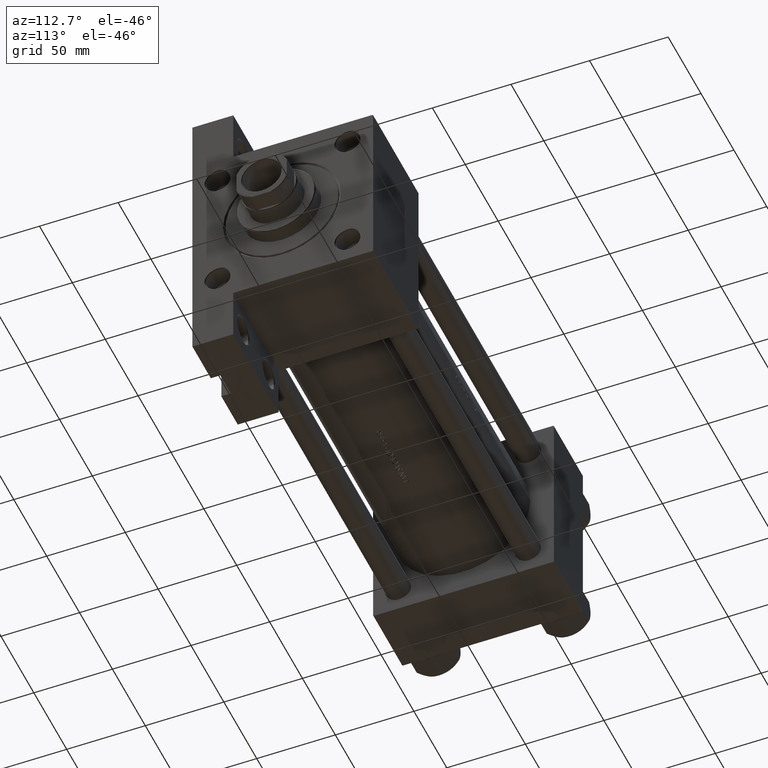
[diagram: clean part render]
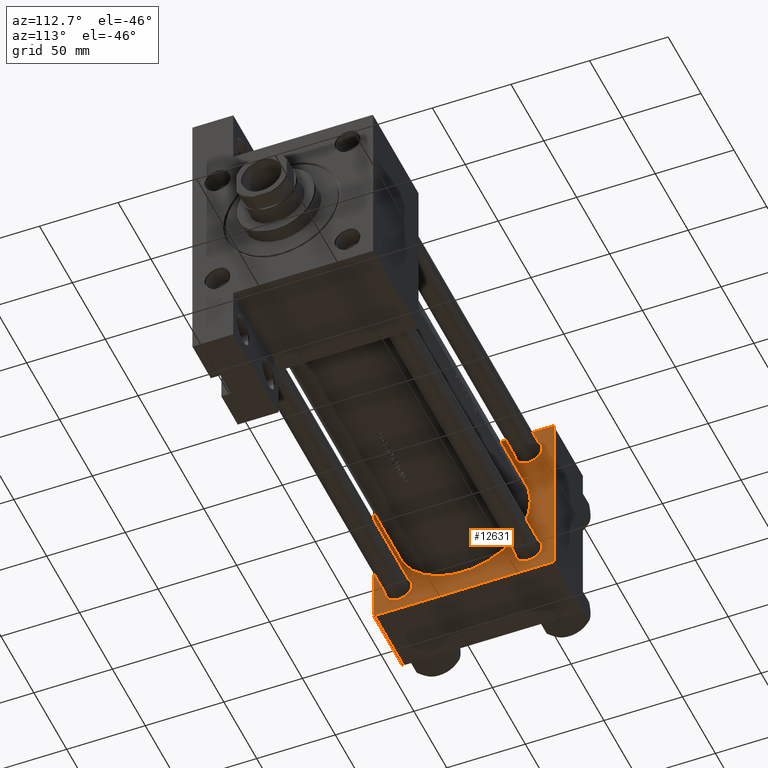
[diagram: same view with one face highlighted and labeled with its STEP entity id]
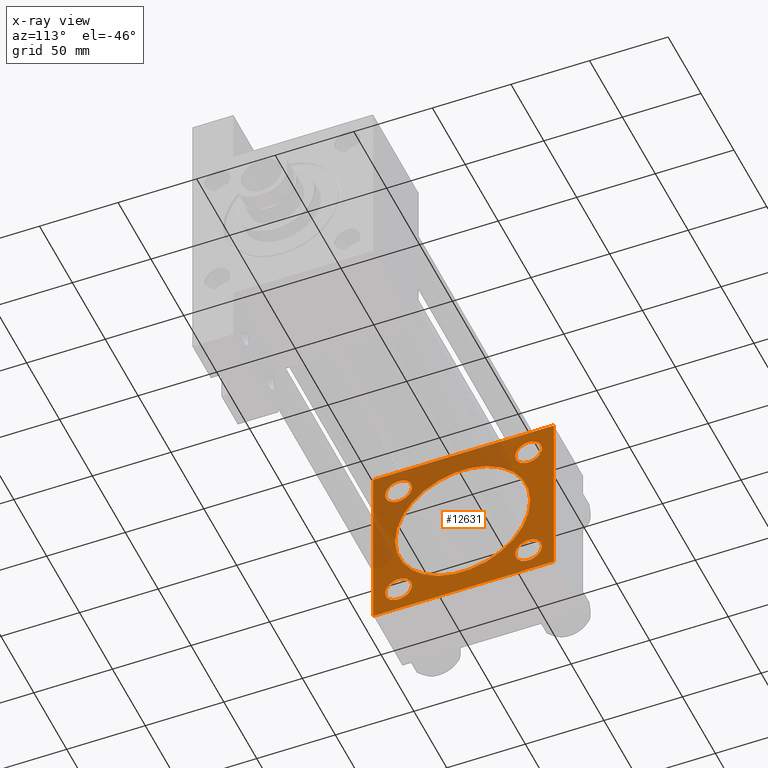
[diagram: x-ray of the same camera — body ghosted, the highlighted face saturated]
A machine part, auxiliary view. The second image highlights one B-rep face of the part: STEP entity #12631.
The next image is the same camera in x-ray: the body ghosted, the highlighted face saturated — about 34% of this face is hidden behind the body in this view.
In plain terms, the highlighted planar face has unit normal (-1, 0, -0).
Its self-contained STEP definition (entity closure, byte-faithful):
#271 = DIRECTION ( 'NONE',  ( 0.000000000000000000, 0.000000000000000000, 1.000000000000000000 ) ) ;
#310 = AXIS2_PLACEMENT_3D ( 'NONE', #36763, #47953, #36996 ) ;
#540 = CARTESIAN_POINT ( 'NONE',  ( 44.00000000000000000, 57.49999999999999289, -57.00000000000000711 ) ) ;
#639 = LINE ( 'NONE', #30316, #41156 ) ;
#788 = CARTESIAN_POINT ( 'NONE',  ( 44.00000000000000000, 41.34999999999999432, 41.35000000000000142 ) ) ;
#869 = VERTEX_POINT ( 'NONE', #37742 ) ;
#907 = VERTEX_POINT ( 'NONE', #22914 ) ;
#1273 = VERTEX_POINT ( 'NONE', #6579 ) ;
#1302 = EDGE_LOOP ( 'NONE', ( #38265, #28093 ) ) ;
#1356 = CARTESIAN_POINT ( 'NONE',  ( 44.00000000000000000, 57.49999999999999289, 57.00000000000003553 ) ) ;
#1461 = LINE ( 'NONE', #5357, #1559 ) ;
#1559 = VECTOR ( 'NONE', #42807, 1000.000000000000000 ) ;
#1704 = DIRECTION ( 'NONE',  ( 0.000000000000000000, -1.000000000000000000, -1.206764157201257045E-16 ) ) ;
#1901 = VERTEX_POINT ( 'NONE', #16872 ) ;
#1915 = EDGE_LOOP ( 'NONE', ( #17253, #29608 ) ) ;
#2277 = LINE ( 'NONE', #12520, #24657 ) ;
#2476 = CARTESIAN_POINT ( 'NONE',  ( 44.00000000000000000, 0.000000000000000000, 0.000000000000000000 ) ) ;
#2921 = ORIENTED_EDGE ( 'NONE', *, *, #4729, .T. ) ;
#2977 = CARTESIAN_POINT ( 'NONE',  ( 44.00000000000000000, 41.34999999999999432, -41.35000000000000142 ) ) ;
#4199 = CARTESIAN_POINT ( 'NONE',  ( 44.00000000000000000, 41.34999999999999432, 49.84999999999993037 ) ) ;
#4268 = ORIENTED_EDGE ( 'NONE', *, *, #21208, .T. ) ;
#4333 = VECTOR ( 'NONE', #36201, 1000.000000000000000 ) ;
#4724 = EDGE_CURVE ( 'NONE', #16147, #8024, #1461, .T. ) ;
#4729 = EDGE_CURVE ( 'NONE', #7351, #7054, #16787, .T. ) ;
#4861 = DIRECTION ( 'NONE',  ( 0.000000000000000000, 0.000000000000000000, 1.000000000000000000 ) ) ;
#5357 = CARTESIAN_POINT ( 'NONE',  ( 44.00000000000000000, 57.49999999999999289, 57.50000000000000711 ) ) ;
#5454 = DIRECTION ( 'NONE',  ( -0.000000000000000000, 0.7071067811865376918, 0.7071067811865573427 ) ) ;
#6019 = AXIS2_PLACEMENT_3D ( 'NONE', #27072, #45083, #15892 ) ;
#6451 = ORIENTED_EDGE ( 'NONE', *, *, #9808, .T. ) ;
#6579 = CARTESIAN_POINT ( 'NONE',  ( 43.99999999999998579, 5.327213576290985256E-15, -43.49999999999999289 ) ) ;
#6617 = DIRECTION ( 'NONE',  ( -0.000000000000000000, 0.000000000000000000, 1.000000000000000000 ) ) ;
#7054 = VERTEX_POINT ( 'NONE', #37510 ) ;
#7146 = VECTOR ( 'NONE', #25129, 1000.000000000000000 ) ;
#7279 = CARTESIAN_POINT ( 'NONE',  ( 43.99999999999998579, 6.123233995736685917E-17, 42.50000000000000000 ) ) ;
#7312 = CIRCLE ( 'NONE', #310, 8.499999999999923617 ) ;
#7336 = DIRECTION ( 'NONE',  ( -1.000000000000000000, 0.000000000000000000, -0.000000000000000000 ) ) ;
#7351 = VERTEX_POINT ( 'NONE', #42850 ) ;
#7731 = CIRCLE ( 'NONE', #34936, 8.499999999999923617 ) ;
#8024 = VERTEX_POINT ( 'NONE', #540 ) ;
#8442 = CARTESIAN_POINT ( 'NONE',  ( 44.00000000000000000, -57.50000000000000711, 57.00000000000000711 ) ) ;
#9018 = CARTESIAN_POINT ( 'NONE',  ( 44.00000000000000000, 57.49999999999999289, 57.50000000000000711 ) ) ;
#9356 = VERTEX_POINT ( 'NONE', #22877 ) ;
#9602 = AXIS2_PLACEMENT_3D ( 'NONE', #15355, #22661, #271 ) ;
#9629 = CIRCLE ( 'NONE', #13521, 43.00000000000000000 ) ;
#9808 = EDGE_CURVE ( 'NONE', #11113, #46796, #24655, .T. ) ;
#9823 = EDGE_LOOP ( 'NONE', ( #32967, #19353, #27439, #43003, #2921, #33955, #6451, #43850 ) ) ;
#9846 = CARTESIAN_POINT ( 'NONE',  ( 44.00000000000000000, -57.50000000000000711, 57.49999999999999289 ) ) ;
#9926 = AXIS2_PLACEMENT_3D ( 'NONE', #31342, #23802, #46186 ) ;
#10541 = CIRCLE ( 'NONE', #26045, 8.499999999999923617 ) ;
#10989 = FACE_BOUND ( 'NONE', #25422, .T. ) ;
#11113 = VERTEX_POINT ( 'NONE', #11150 ) ;
#11150 = CARTESIAN_POINT ( 'NONE',  ( 44.00000000000000000, -57.50000000000000711, 57.00000000000000711 ) ) ;
#11293 = VERTEX_POINT ( 'NONE', #27651 ) ;
#11843 = DIRECTION ( 'NONE',  ( 0.000000000000000000, 0.7071067811865474617, -0.7071067811865474617 ) ) ;
#12520 = CARTESIAN_POINT ( 'NONE',  ( 44.00000000000000000, 57.49999999999999289, -57.00000000000000711 ) ) ;
#12631 = ADVANCED_FACE ( 'NONE', ( #29456, #44058, #40410, #10989, #25807, #40654 ), #43585, .F. ) ;
#12885 = EDGE_CURVE ( 'NONE', #29704, #34784, #46153, .T. ) ;
#13521 = AXIS2_PLACEMENT_3D ( 'NONE', #42742, #38374, #35466 ) ;
#13836 = CARTESIAN_POINT ( 'NONE',  ( 44.00000000000000000, 57.49999999999999289, -57.49999999999999289 ) ) ;
#13990 = CIRCLE ( 'NONE', #24880, 8.499999999999923617 ) ;
#15020 = CIRCLE ( 'NONE', #9602, 43.00000000000000000 ) ;
#15355 = CARTESIAN_POINT ( 'NONE',  ( 43.99999999999998579, 6.123233995736685917E-17, -0.4999999999999935052 ) ) ;
#15441 = EDGE_CURVE ( 'NONE', #42462, #1273, #15020, .T. ) ;
#15578 = LINE ( 'NONE', #19717, #29751 ) ;
#15636 = DIRECTION ( 'NONE',  ( -1.000000000000000000, 0.000000000000000000, -0.000000000000000000 ) ) ;
#15671 = CARTESIAN_POINT ( 'NONE',  ( 44.00000000000000000, -41.34999999999998721, -32.85000000000008669 ) ) ;
#15731 = LINE ( 'NONE', #8442, #32874 ) ;
#15892 = DIRECTION ( 'NONE',  ( 0.000000000000000000, 0.000000000000000000, 1.000000000000000000 ) ) ;
#16147 = VERTEX_POINT ( 'NONE', #1356 ) ;
#16537 = DIRECTION ( 'NONE',  ( -1.000000000000000000, 0.000000000000000000, -0.000000000000000000 ) ) ;
#16602 = EDGE_CURVE ( 'NONE', #47675, #869, #10541, .T. ) ;
#16787 = LINE ( 'NONE', #9018, #24101 ) ;
#16872 = CARTESIAN_POINT ( 'NONE',  ( 44.00000000000000000, -41.34999999999998721, 32.85000000000008669 ) ) ;
#17253 = ORIENTED_EDGE ( 'NONE', *, *, #27853, .T. ) ;
#17416 = AXIS2_PLACEMENT_3D ( 'NONE', #788, #15636, #38008 ) ;
#17762 = ORIENTED_EDGE ( 'NONE', *, *, #16602, .T. ) ;
#17961 = EDGE_CURVE ( 'NONE', #39053, #11293, #20888, .T. ) ;
#19230 = CARTESIAN_POINT ( 'NONE',  ( 44.00000000000000000, 57.00000000000002132, -57.49999999999999289 ) ) ;
#19353 = ORIENTED_EDGE ( 'NONE', *, *, #25925, .T. ) ;
#19717 = CARTESIAN_POINT ( 'NONE',  ( 44.00000000000000000, 57.00000000000000711, 57.50000000000000711 ) ) ;
#20421 = ORIENTED_EDGE ( 'NONE', *, *, #21867, .T. ) ;
#20888 = LINE ( 'NONE', #13836, #4333 ) ;
#21208 = EDGE_CURVE ( 'NONE', #34784, #29704, #37052, .T. ) ;
#21867 = EDGE_CURVE ( 'NONE', #869, #47675, #23866, .T. ) ;
#21875 = CARTESIAN_POINT ( 'NONE',  ( 44.00000000000000000, 41.34999999999999432, -49.84999999999993037 ) ) ;
#22661 = DIRECTION ( 'NONE',  ( 1.000000000000000000, -0.000000000000000000, 0.000000000000000000 ) ) ;
#22877 = CARTESIAN_POINT ( 'NONE',  ( 44.00000000000000000, -41.34999999999998721, 49.84999999999993747 ) ) ;
#22914 = CARTESIAN_POINT ( 'NONE',  ( 44.00000000000000000, 41.34999999999999432, 32.85000000000007958 ) ) ;
#22916 = CARTESIAN_POINT ( 'NONE',  ( 44.00000000000000000, -41.34999999999998721, -49.84999999999993747 ) ) ;
#23604 = AXIS2_PLACEMENT_3D ( 'NONE', #43525, #40350, #39639 ) ;
#23802 = DIRECTION ( 'NONE',  ( -1.000000000000000000, 0.000000000000000000, -0.000000000000000000 ) ) ;
#23866 = CIRCLE ( 'NONE', #9926, 8.499999999999923617 ) ;
#24101 = VECTOR ( 'NONE', #1704, 1000.000000000000000 ) ;
#24655 = LINE ( 'NONE', #9846, #7146 ) ;
#24657 = VECTOR ( 'NONE', #5454, 1000.000000000000114 ) ;
#24880 = AXIS2_PLACEMENT_3D ( 'NONE', #38185, #16537, #4861 ) ;
#25129 = DIRECTION ( 'NONE',  ( 0.000000000000000000, 0.000000000000000000, -1.000000000000000000 ) ) ;
#25422 = EDGE_LOOP ( 'NONE', ( #26478, #25994 ) ) ;
#25807 = FACE_BOUND ( 'NONE', #1302, .T. ) ;
#25925 = EDGE_CURVE ( 'NONE', #39053, #8024, #2277, .T. ) ;
#25994 = ORIENTED_EDGE ( 'NONE', *, *, #41127, .T. ) ;
#26045 = AXIS2_PLACEMENT_3D ( 'NONE', #2977, #32909, #32432 ) ;
#26478 = ORIENTED_EDGE ( 'NONE', *, *, #41296, .T. ) ;
#26961 = ORIENTED_EDGE ( 'NONE', *, *, #12885, .T. ) ;
#27072 = CARTESIAN_POINT ( 'NONE',  ( 44.00000000000000000, -41.34999999999998721, -41.35000000000000853 ) ) ;
#27293 = DIRECTION ( 'NONE',  ( 0.000000000000000000, 0.000000000000000000, 1.000000000000000000 ) ) ;
#27439 = ORIENTED_EDGE ( 'NONE', *, *, #4724, .F. ) ;
#27651 = CARTESIAN_POINT ( 'NONE',  ( 44.00000000000000000, -57.00000000000000711, -57.50000000000000711 ) ) ;
#27853 = EDGE_CURVE ( 'NONE', #1901, #9356, #7731, .T. ) ;
#28093 = ORIENTED_EDGE ( 'NONE', *, *, #39504, .F. ) ;
#28297 = EDGE_CURVE ( 'NONE', #9356, #1901, #13990, .T. ) ;
#29109 = EDGE_CURVE ( 'NONE', #46796, #11293, #639, .T. ) ;
#29456 = FACE_BOUND ( 'NONE', #30364, .T. ) ;
#29608 = ORIENTED_EDGE ( 'NONE', *, *, #28297, .T. ) ;
#29704 = VERTEX_POINT ( 'NONE', #22916 ) ;
#29751 = VECTOR ( 'NONE', #37468, 1000.000000000000114 ) ;
#30316 = CARTESIAN_POINT ( 'NONE',  ( 44.00000000000000000, -57.00000000000000711, -57.50000000000000711 ) ) ;
#30364 = EDGE_LOOP ( 'NONE', ( #26961, #4268 ) ) ;
#31342 = CARTESIAN_POINT ( 'NONE',  ( 44.00000000000000000, 41.34999999999999432, -41.35000000000000142 ) ) ;
#31354 = AXIS2_PLACEMENT_3D ( 'NONE', #2476, #7336, #6617 ) ;
#32183 = CIRCLE ( 'NONE', #17416, 8.499999999999923617 ) ;
#32432 = DIRECTION ( 'NONE',  ( 0.000000000000000000, 0.000000000000000000, 1.000000000000000000 ) ) ;
#32874 = VECTOR ( 'NONE', #38585, 1000.000000000000114 ) ;
#32909 = DIRECTION ( 'NONE',  ( -1.000000000000000000, 0.000000000000000000, -0.000000000000000000 ) ) ;
#32967 = ORIENTED_EDGE ( 'NONE', *, *, #17961, .F. ) ;
#33955 = ORIENTED_EDGE ( 'NONE', *, *, #34342, .T. ) ;
#34342 = EDGE_CURVE ( 'NONE', #7054, #11113, #15731, .T. ) ;
#34784 = VERTEX_POINT ( 'NONE', #15671 ) ;
#34936 = AXIS2_PLACEMENT_3D ( 'NONE', #38977, #39222, #27293 ) ;
#35466 = DIRECTION ( 'NONE',  ( 0.000000000000000000, 0.000000000000000000, 1.000000000000000000 ) ) ;
#35792 = EDGE_LOOP ( 'NONE', ( #17762, #20421 ) ) ;
#36201 = DIRECTION ( 'NONE',  ( 0.000000000000000000, -1.000000000000000000, -1.206764157201257045E-16 ) ) ;
#36763 = CARTESIAN_POINT ( 'NONE',  ( 44.00000000000000000, 41.34999999999999432, 41.35000000000000142 ) ) ;
#36996 = DIRECTION ( 'NONE',  ( 0.000000000000000000, 0.000000000000000000, 1.000000000000000000 ) ) ;
#37052 = CIRCLE ( 'NONE', #6019, 8.499999999999923617 ) ;
#37468 = DIRECTION ( 'NONE',  ( 0.000000000000000000, -0.7071067811865573427, 0.7071067811865376918 ) ) ;
#37510 = CARTESIAN_POINT ( 'NONE',  ( 44.00000000000000000, -57.00000000000003553, 57.49999999999999289 ) ) ;
#37742 = CARTESIAN_POINT ( 'NONE',  ( 44.00000000000000000, 41.34999999999999432, -32.85000000000007958 ) ) ;
#38008 = DIRECTION ( 'NONE',  ( 0.000000000000000000, 0.000000000000000000, 1.000000000000000000 ) ) ;
#38185 = CARTESIAN_POINT ( 'NONE',  ( 44.00000000000000000, -41.34999999999998721, 41.35000000000000853 ) ) ;
#38265 = ORIENTED_EDGE ( 'NONE', *, *, #15441, .F. ) ;
#38374 = DIRECTION ( 'NONE',  ( 1.000000000000000000, -0.000000000000000000, 0.000000000000000000 ) ) ;
#38585 = DIRECTION ( 'NONE',  ( -0.000000000000000000, -0.7071067811865376918, -0.7071067811865573427 ) ) ;
#38977 = CARTESIAN_POINT ( 'NONE',  ( 44.00000000000000000, -41.34999999999998721, 41.35000000000000853 ) ) ;
#39046 = EDGE_CURVE ( 'NONE', #16147, #7351, #15578, .T. ) ;
#39053 = VERTEX_POINT ( 'NONE', #19230 ) ;
#39222 = DIRECTION ( 'NONE',  ( -1.000000000000000000, 0.000000000000000000, -0.000000000000000000 ) ) ;
#39504 = EDGE_CURVE ( 'NONE', #1273, #42462, #9629, .T. ) ;
#39639 = DIRECTION ( 'NONE',  ( 0.000000000000000000, 0.000000000000000000, 1.000000000000000000 ) ) ;
#40350 = DIRECTION ( 'NONE',  ( -1.000000000000000000, 0.000000000000000000, -0.000000000000000000 ) ) ;
#40410 = FACE_BOUND ( 'NONE', #1915, .T. ) ;
#40654 = FACE_OUTER_BOUND ( 'NONE', #9823, .T. ) ;
#41127 = EDGE_CURVE ( 'NONE', #47988, #907, #32183, .T. ) ;
#41156 = VECTOR ( 'NONE', #11843, 1000.000000000000114 ) ;
#41296 = EDGE_CURVE ( 'NONE', #907, #47988, #7312, .T. ) ;
#42462 = VERTEX_POINT ( 'NONE', #7279 ) ;
#42742 = CARTESIAN_POINT ( 'NONE',  ( 43.99999999999998579, 6.123233995736685917E-17, -0.4999999999999935052 ) ) ;
#42807 = DIRECTION ( 'NONE',  ( 0.000000000000000000, 0.000000000000000000, -1.000000000000000000 ) ) ;
#42850 = CARTESIAN_POINT ( 'NONE',  ( 44.00000000000000000, 57.00000000000000711, 57.50000000000000711 ) ) ;
#43003 = ORIENTED_EDGE ( 'NONE', *, *, #39046, .T. ) ;
#43525 = CARTESIAN_POINT ( 'NONE',  ( 44.00000000000000000, -41.34999999999998721, -41.35000000000000853 ) ) ;
#43585 = PLANE ( 'NONE',  #31354 ) ;
#43850 = ORIENTED_EDGE ( 'NONE', *, *, #29109, .T. ) ;
#44058 = FACE_BOUND ( 'NONE', #35792, .T. ) ;
#45083 = DIRECTION ( 'NONE',  ( -1.000000000000000000, 0.000000000000000000, -0.000000000000000000 ) ) ;
#45910 = CARTESIAN_POINT ( 'NONE',  ( 44.00000000000000000, -57.50000000000000711, -57.00000000000000711 ) ) ;
#46153 = CIRCLE ( 'NONE', #23604, 8.499999999999923617 ) ;
#46186 = DIRECTION ( 'NONE',  ( 0.000000000000000000, 0.000000000000000000, 1.000000000000000000 ) ) ;
#46796 = VERTEX_POINT ( 'NONE', #45910 ) ;
#47675 = VERTEX_POINT ( 'NONE', #21875 ) ;
#47953 = DIRECTION ( 'NONE',  ( -1.000000000000000000, 0.000000000000000000, -0.000000000000000000 ) ) ;
#47988 = VERTEX_POINT ( 'NONE', #4199 ) ;